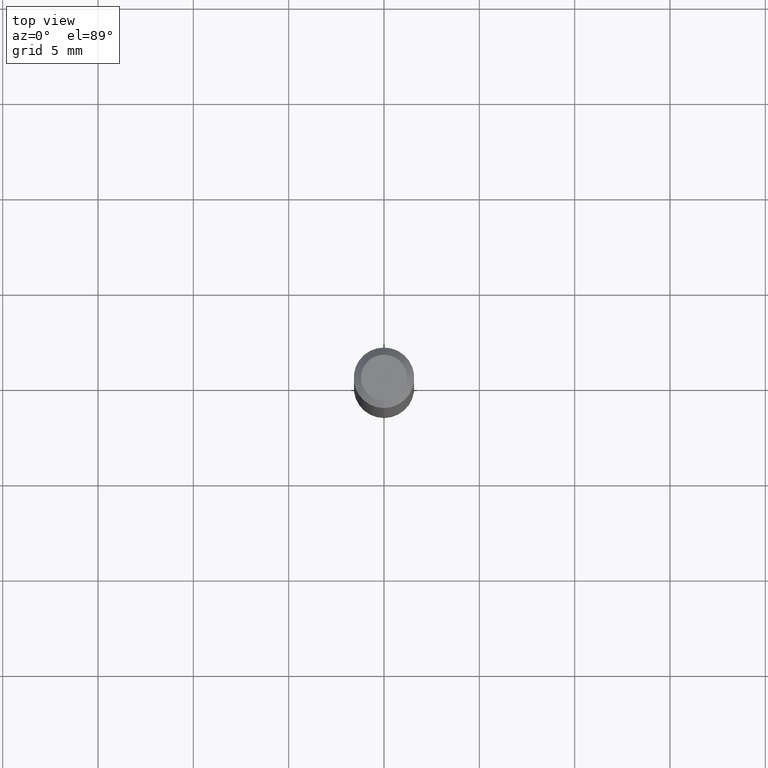
[diagram: clean part render]
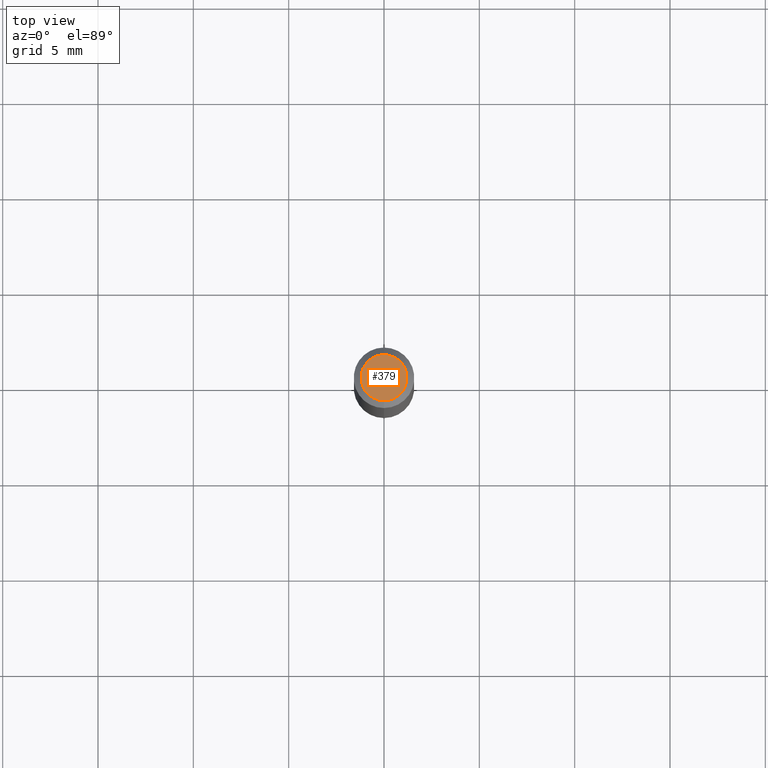
[diagram: same view with one face highlighted and labeled with its STEP entity id]
A machine part, top view. The second image highlights one B-rep face of the part: STEP entity #379.
In plain terms, the highlighted planar face has unit normal (0, -0, -1).
Its self-contained STEP definition (entity closure, byte-faithful):
#41 = AXIS2_PLACEMENT_3D ( 'NONE', #327, #375, #499 ) ;
#100 = DIRECTION ( 'NONE',  ( -2.445459950379643973E-29, 3.491494020860651909E-15, 1.000000000000000000 ) ) ;
#125 = VERTEX_POINT ( 'NONE', #275 ) ;
#130 = ORIENTED_EDGE ( 'NONE', *, *, #326, .T. ) ;
#137 = CARTESIAN_POINT ( 'NONE',  ( 3.316907271900976096E-16, 0.04749999999999999362, -1.702758245888807416E-16 ) ) ;
#203 = AXIS2_PLACEMENT_3D ( 'NONE', #249, #100, #253 ) ;
#215 = VERTEX_POINT ( 'NONE', #487 ) ;
#249 = CARTESIAN_POINT ( 'NONE',  ( 2.166608357450673207E-46, -3.093364961634872057E-32, -8.859717195999548619E-18 ) ) ;
#253 = DIRECTION ( 'NONE',  ( -6.982962677686266711E-15, -1.000000000000000000, 3.491494020860652304E-15 ) ) ;
#258 = DIRECTION ( 'NONE',  ( 2.445459950379643973E-29, -3.491494020860651909E-15, -1.000000000000000000 ) ) ;
#275 = CARTESIAN_POINT ( 'NONE',  ( -3.773273898774340269E-16, -0.04749999999999999362, 1.569862487948814010E-16 ) ) ;
#289 = DIRECTION ( 'NONE',  ( 6.982962677686265922E-15, 1.000000000000000000, -3.491494020860651909E-15 ) ) ;
#294 = CIRCLE ( 'NONE', #203, 0.04749999999999999362 ) ;
#326 = EDGE_CURVE ( 'NONE', #215, #125, #419, .T. ) ;
#327 = CARTESIAN_POINT ( 'NONE',  ( 2.166608357450673207E-46, -3.093364961634872057E-32, -8.859717195999548619E-18 ) ) ;
#335 = FACE_OUTER_BOUND ( 'NONE', #437, .T. ) ;
#342 = EDGE_CURVE ( 'NONE', #125, #215, #294, .T. ) ;
#356 = ORIENTED_EDGE ( 'NONE', *, *, #342, .T. ) ;
#363 = AXIS2_PLACEMENT_3D ( 'NONE', #137, #258, #289 ) ;
#375 = DIRECTION ( 'NONE',  ( -2.445459950379643973E-29, 3.491494020860651909E-15, 1.000000000000000000 ) ) ;
#379 = ADVANCED_FACE ( 'NONE', ( #335 ), #452, .F. ) ;
#419 = CIRCLE ( 'NONE', #41, 0.04749999999999999362 ) ;
#437 = EDGE_LOOP ( 'NONE', ( #130, #356 ) ) ;
#452 = PLANE ( 'NONE',  #363 ) ;
#487 = CARTESIAN_POINT ( 'NONE',  ( 3.840629472727447874E-16, 0.04749999999999999362, -1.747056831868805136E-16 ) ) ;
#499 = DIRECTION ( 'NONE',  ( -6.982962677686266711E-15, -1.000000000000000000, 3.491494020860652304E-15 ) ) ;